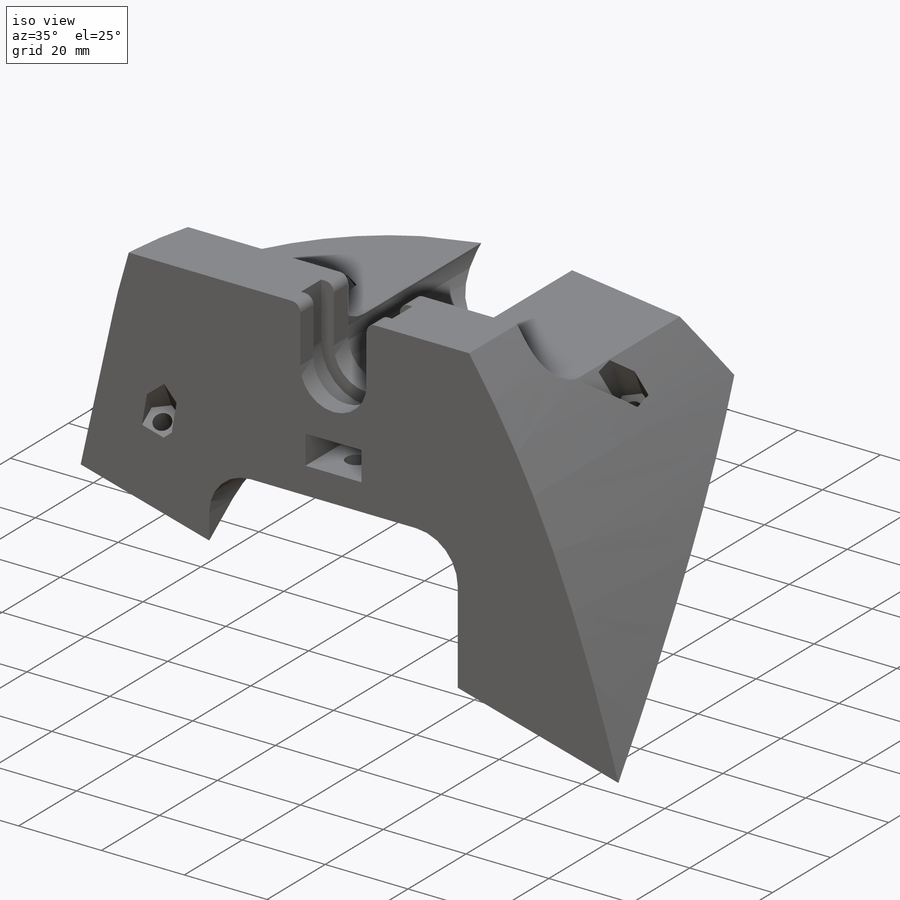
[diagram: iso view]
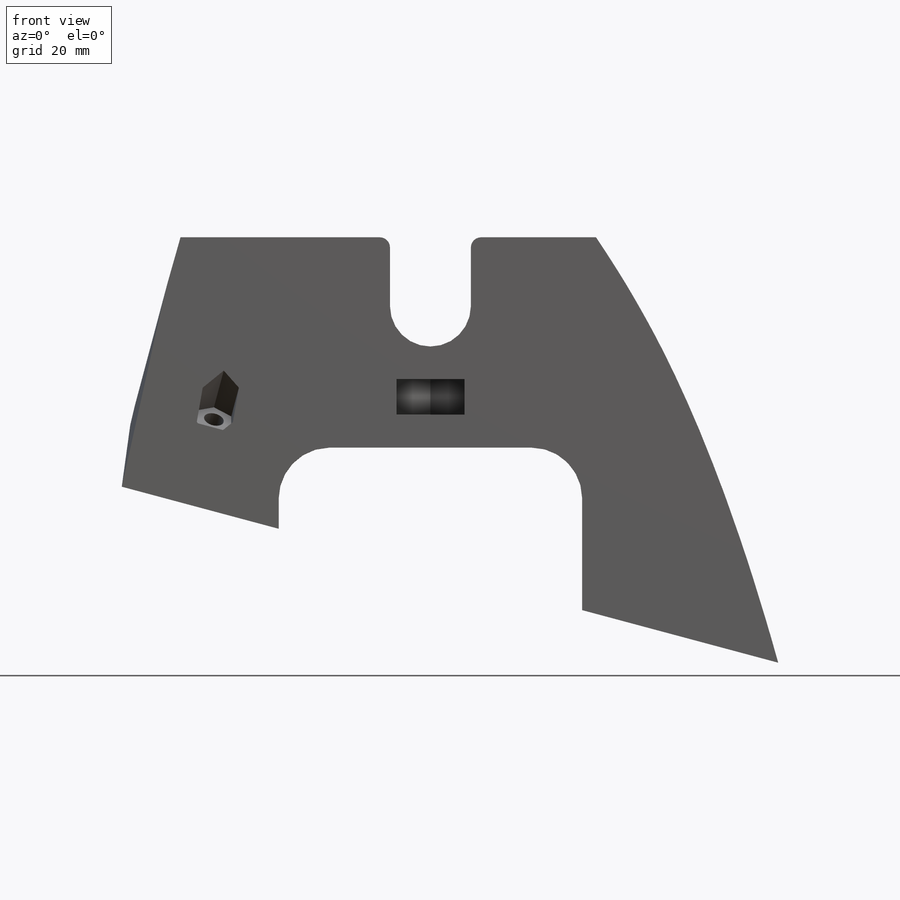
[diagram: front view]
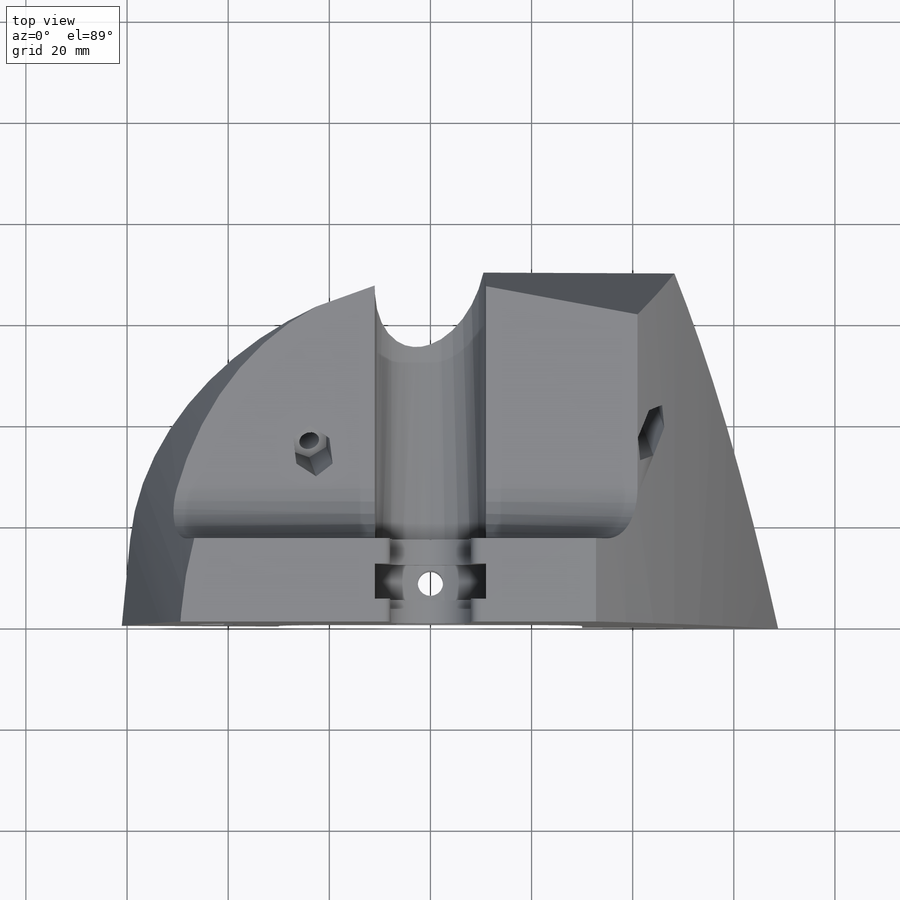
[diagram: top view]
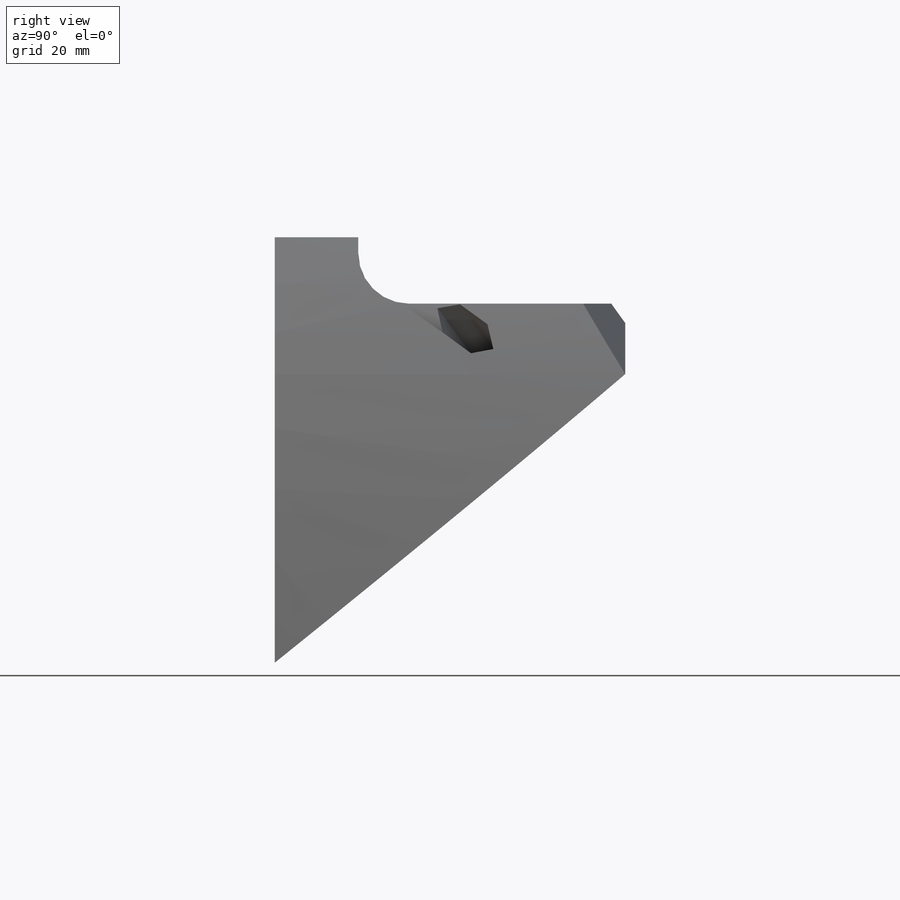
[diagram: right view]
SOLIDWORKS PART (.sldprt)
format: sldprt  version: not decoded by parser v0  size: 1,208,832 bytes
history: native  units: mm
features: sketch x11, cut_extrude x8, extrude x3, plane x3, material x1 (+12 scaffold rows collapsed)
feature tree (38):
  scaffold x12  (default folders/planes/origin — collapsed)
  material  "Material <not specified>"
  sketch  "Sketch1"  dims[D1=22.0mm]
  extrude  "Boss-Extrude1"  [1 undecoded]
  sketch  "Sketch2"  dims[D1=5.0mm D2=8.0mm]
  cut_extrude  "Cut-Extrude1"  Depth=67mm
  sketch  "Sketch3"  dims[D1=16.0mm D2=2.0mm]
  extrude  "Boss-Extrude2"  Depth=4.5mm
  sketch  "Sketch4"  dims[D1=10.0mm D2=30.0mm D3=28.0mm D4=~15.64352mm]
  cut_extrude  "Cut-Extrude2"  Depth=53mm
  plane  "Plane1"  Offset=7mm
  sketch  "Sketch5"  dims[D1=0.0mm]
  extrude  "Boss-Extrude3"  Depth=5mm
  sketch  "Sketch6"  dims[D1=0.0mm]
  cut_extrude  "Cut-Extrude3"  Depth=70mm
  sketch  "Sketch7"  dims[D1=10.0mm]
  cut_extrude  "Cut-Extrude4"  Depth=210mm
  sketch  "Sketch8"
  cut_extrude  "Cut-Extrude5"  Depth=210mm
  plane  "Plane2"  Offset=10mm
  sketch  "Sketch9"  dims[D1=13.5mm D2=5.0mm]
  cut_extrude  "Cut-Extrude6"  Depth=7mm
  sketch  "Sketch10"  dims[c1.D7=4.0mm c1.D1=~104.691935mm c2.D1=~0.079955deg c3.D1=12.0mm c3.D2=15.0mm c3.D3=15.0mm c3.D4=20.0mm c3.D5=10.0mm c3.D6=55.0mm]
  cut_extrude  "Cut-Extrude7"  Depth=30mm
  plane  "Plane3"  Offset=13mm
  sketch  "Sketch11"  dims[D1=7.0mm]
  cut_extrude  "Cut-Extrude8"  Depth=30mm
decode coverage: 20 of 22 modeling features carry decoded parameters
note: ~ marks probable driven/reference dimensions
note: 1 parameter value undecoded
note: suppression state not decoded; provenance and decode notes live in map.json
